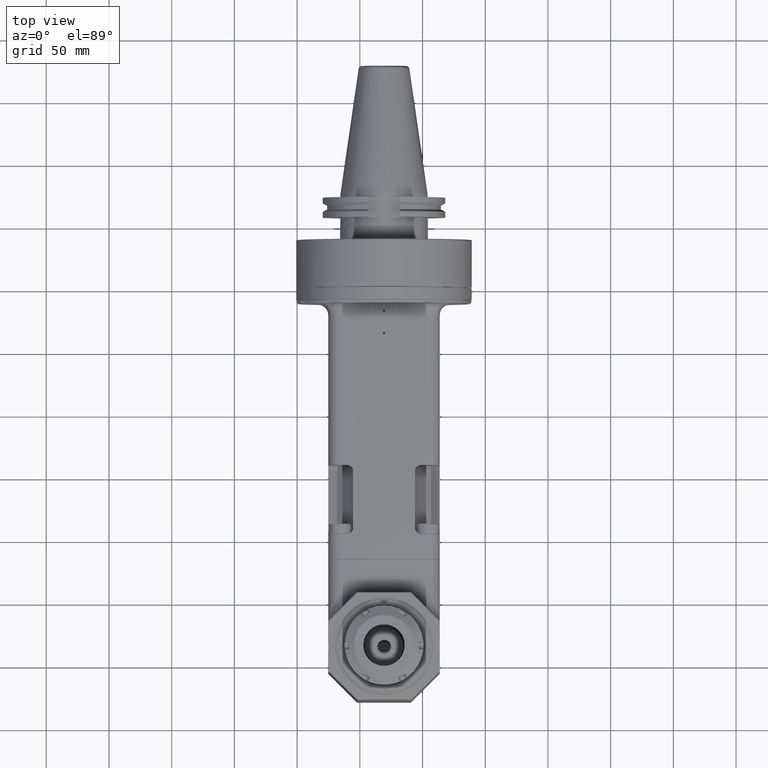
[diagram: clean part render]
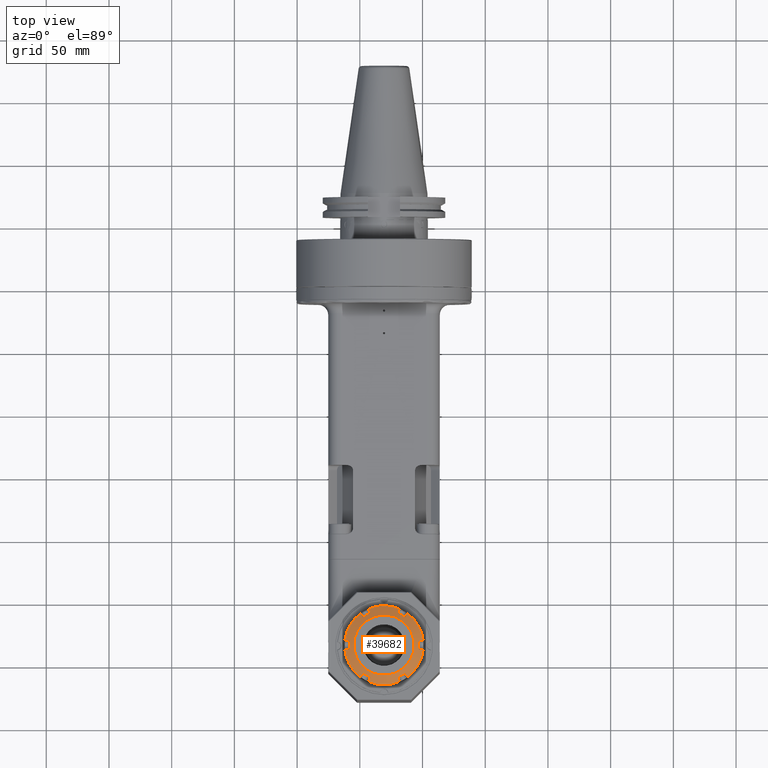
[diagram: same view with one face highlighted and labeled with its STEP entity id]
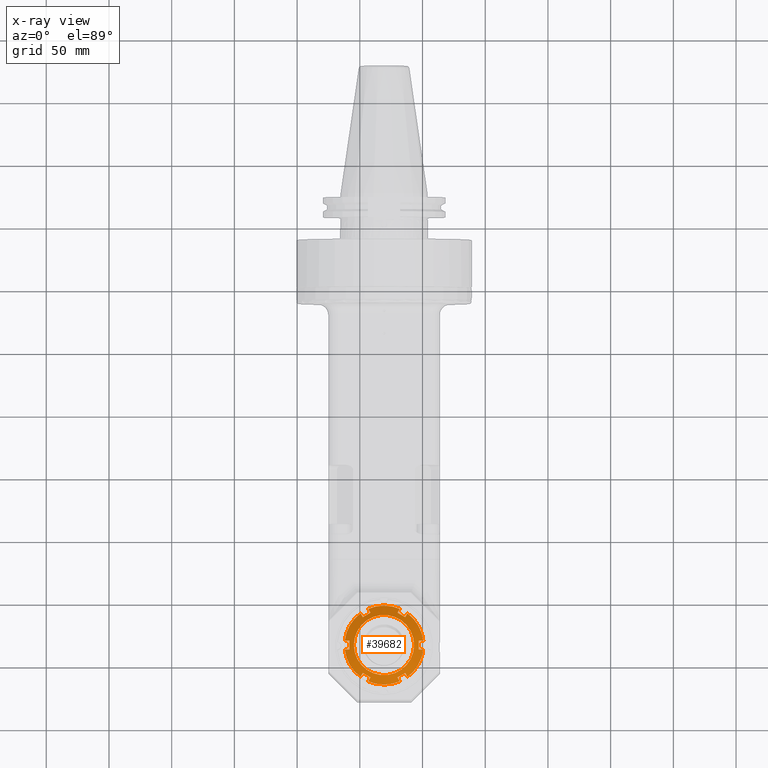
[diagram: x-ray of the same camera — body ghosted, the highlighted face saturated]
A machine part, top view. The second image highlights one B-rep face of the part: STEP entity #39682.
The next image is the same camera in x-ray: the body ghosted, the highlighted face saturated — about 0% of this face is hidden behind the body in this view.
In plain terms, the highlighted conical surface has half-angle 60 deg.
Its self-contained STEP definition (entity closure, byte-faithful):
#1226=B_SPLINE_CURVE_WITH_KNOTS('',3,(#71067,#71068,#71069,#71070,#71071,
#71072),.UNSPECIFIED.,.F.,.F.,(4,2,4),(1.11979015614357E-6,0.176519901403178,
0.3535839406117),.UNSPECIFIED.);
#1227=B_SPLINE_CURVE_WITH_KNOTS('',3,(#71074,#71075,#71076,#71077,#71078,
#71079),.UNSPECIFIED.,.F.,.F.,(4,2,4),(3.77529047413861E-6,0.206209562273198,
0.406370046693071),.UNSPECIFIED.);
#1228=B_SPLINE_CURVE_WITH_KNOTS('',3,(#71087,#71088,#71089,#71090,#71091,
#71092),.UNSPECIFIED.,.F.,.F.,(4,2,4),(9.99999987520117E-7,0.199819054731875,
0.405671878882407),.UNSPECIFIED.);
#1229=B_SPLINE_CURVE_WITH_KNOTS('',3,(#71094,#71095,#71096,#71097,#71098,
#71099,#71100,#71101),.UNSPECIFIED.,.F.,.F.,(4,2,2,4),(2.65994634475977E-6,
0.177012282494541,0.353623444164334,0.707595465118637),.UNSPECIFIED.);
#1230=B_SPLINE_CURVE_WITH_KNOTS('',3,(#71103,#71104,#71105,#71106,#71107,
#71108),.UNSPECIFIED.,.F.,.F.,(4,2,4),(0.,0.206213207235777,0.406373521286783),
 .UNSPECIFIED.);
#1231=B_SPLINE_CURVE_WITH_KNOTS('',3,(#71116,#71117,#71118,#71119,#71120,
#71121),.UNSPECIFIED.,.F.,.F.,(4,2,4),(9.99999987868738E-7,0.199818434846221,
0.405676522198377),.UNSPECIFIED.);
#1232=B_SPLINE_CURVE_WITH_KNOTS('',3,(#71123,#71124,#71125,#71126,#71127,
#71128,#71129,#71130),.UNSPECIFIED.,.F.,.F.,(4,2,2,4),(4.8034315771663E-6,
0.35417573000613,0.530882425887544,0.707992922418419),.UNSPECIFIED.);
#1233=B_SPLINE_CURVE_WITH_KNOTS('',3,(#71132,#71133,#71134,#71135,#71136,
#71137),.UNSPECIFIED.,.F.,.F.,(4,2,4),(1.88411020549214E-6,0.206209750901718,
0.406370691318244),.UNSPECIFIED.);
#1234=B_SPLINE_CURVE_WITH_KNOTS('',3,(#71145,#71146,#71147,#71148,#71149,
#71150),.UNSPECIFIED.,.F.,.F.,(4,2,4),(9.99999986804369E-7,0.199818607037728,
0.405669393272314),.UNSPECIFIED.);
#1235=B_SPLINE_CURVE_WITH_KNOTS('',3,(#71152,#71153,#71154,#71155,#71156,
#71157),.UNSPECIFIED.,.F.,.F.,(4,2,4),(2.44498640368774E-6,0.177058060117183,
0.353566850396505),.UNSPECIFIED.);
#1236=B_SPLINE_CURVE_WITH_KNOTS('',3,(#71159,#71160,#71161,#71162,#71163,
#71164),.UNSPECIFIED.,.F.,.F.,(4,2,4),(1.11979017745984E-6,0.17651990140332,
0.35358394061231),.UNSPECIFIED.);
#1237=B_SPLINE_CURVE_WITH_KNOTS('',3,(#71166,#71167,#71168,#71169,#71170,
#71171),.UNSPECIFIED.,.F.,.F.,(4,2,4),(3.77529047639338E-6,0.206209053955628,
0.406370046697065),.UNSPECIFIED.);
#1238=B_SPLINE_CURVE_WITH_KNOTS('',3,(#71179,#71180,#71181,#71182,#71183,
#71184),.UNSPECIFIED.,.F.,.F.,(4,2,4),(9.99999987442481E-7,0.199819054752461,
0.405671878919684),.UNSPECIFIED.);
#1239=B_SPLINE_CURVE_WITH_KNOTS('',3,(#71186,#71187,#71188,#71189,#71190,
#71191,#71192,#71193),.UNSPECIFIED.,.F.,.F.,(4,2,2,4),(2.65994633911778E-6,
0.17701229104273,0.353623461248479,0.707595526966551),.UNSPECIFIED.);
#1240=B_SPLINE_CURVE_WITH_KNOTS('',3,(#71195,#71196,#71197,#71198,#71199,
#71200),.UNSPECIFIED.,.F.,.F.,(4,2,4),(0.,0.205840510463406,0.406342510941892),
 .UNSPECIFIED.);
#1241=B_SPLINE_CURVE_WITH_KNOTS('',3,(#71208,#71209,#71210,#71211,#71212,
#71213),.UNSPECIFIED.,.F.,.F.,(4,2,4),(9.99999986085214E-7,0.199818942267007,
0.405676522135948),.UNSPECIFIED.);
#1242=B_SPLINE_CURVE_WITH_KNOTS('',3,(#71215,#71216,#71217,#71218,#71219,
#71220,#71221,#71222),.UNSPECIFIED.,.F.,.F.,(4,2,2,4),(4.80343158722682E-6,
0.354175730005551,0.530882425887124,0.707992922415931),.UNSPECIFIED.);
#1243=B_SPLINE_CURVE_WITH_KNOTS('',3,(#71224,#71225,#71226,#71227,#71228,
#71229),.UNSPECIFIED.,.F.,.F.,(4,2,4),(1.88411021176647E-6,0.206209750915278,
0.406370691377473),.UNSPECIFIED.);
#1244=B_SPLINE_CURVE_WITH_KNOTS('',3,(#71237,#71238,#71239,#71240,#71241,
#71242),.UNSPECIFIED.,.F.,.F.,(4,2,4),(9.99999986033955E-7,0.199819114391825,
0.40566939312791),.UNSPECIFIED.);
#1245=B_SPLINE_CURVE_WITH_KNOTS('',3,(#71243,#71244,#71245,#71246,#71247,
#71248),.UNSPECIFIED.,.F.,.F.,(4,2,4),(2.4449864141373E-6,0.177058060116607,
0.353566850395176),.UNSPECIFIED.);
#1702=CONICAL_SURFACE('',#42824,27.75,1.0471975511966);
#3555=LINE('',#71081,#6587);
#3556=LINE('',#71085,#6588);
#3557=LINE('',#71110,#6589);
#3558=LINE('',#71114,#6590);
#3559=LINE('',#71139,#6591);
#3560=LINE('',#71143,#6592);
#3561=LINE('',#71173,#6593);
#3562=LINE('',#71177,#6594);
#3563=LINE('',#71202,#6595);
#3564=LINE('',#71206,#6596);
#3565=LINE('',#71231,#6597);
#3566=LINE('',#71235,#6598);
#3567=LINE('',#71249,#6599);
#6587=VECTOR('',#50258,10.);
#6588=VECTOR('',#50261,10.);
#6589=VECTOR('',#50262,10.);
#6590=VECTOR('',#50265,10.);
#6591=VECTOR('',#50266,10.);
#6592=VECTOR('',#50269,10.);
#6593=VECTOR('',#50270,10.);
#6594=VECTOR('',#50273,10.);
#6595=VECTOR('',#50274,10.);
#6596=VECTOR('',#50277,10.);
#6597=VECTOR('',#50278,10.);
#6598=VECTOR('',#50281,10.);
#6599=VECTOR('',#50282,27.75);
#10066=FACE_OUTER_BOUND('',#12607,.T.);
#12607=EDGE_LOOP('',(#31102,#31103,#31104,#31105,#31106,#31107,#31108,#31109,
#31110,#31111,#31112,#31113,#31114,#31115,#31116,#31117,#31118,#31119,#31120,
#31121,#31122,#31123,#31124,#31125,#31126,#31127,#31128,#31129,#31130,#31131,
#31132,#31133,#31134,#31135,#31136,#31137,#31138,#31139,#31140,#31141,#31142));
#14724=CIRCLE('',#42823,24.);
#14725=CIRCLE('',#42825,31.5);
#14726=CIRCLE('',#42826,31.5);
#14727=CIRCLE('',#42827,31.5);
#14728=CIRCLE('',#42828,31.5);
#14729=CIRCLE('',#42829,31.5);
#14730=CIRCLE('',#42830,31.5);
#17708=VERTEX_POINT('',#71062);
#17709=VERTEX_POINT('',#71065);
#17710=VERTEX_POINT('',#71066);
#17711=VERTEX_POINT('',#71073);
#17712=VERTEX_POINT('',#71080);
#17713=VERTEX_POINT('',#71082);
#17714=VERTEX_POINT('',#71084);
#17715=VERTEX_POINT('',#71086);
#17716=VERTEX_POINT('',#71093);
#17717=VERTEX_POINT('',#71102);
#17718=VERTEX_POINT('',#71109);
#17719=VERTEX_POINT('',#71111);
#17720=VERTEX_POINT('',#71113);
#17721=VERTEX_POINT('',#71115);
#17722=VERTEX_POINT('',#71122);
#17723=VERTEX_POINT('',#71131);
#17724=VERTEX_POINT('',#71138);
#17725=VERTEX_POINT('',#71140);
#17726=VERTEX_POINT('',#71142);
#17727=VERTEX_POINT('',#71144);
#17728=VERTEX_POINT('',#71151);
#17729=VERTEX_POINT('',#71158);
#17730=VERTEX_POINT('',#71165);
#17731=VERTEX_POINT('',#71172);
#17732=VERTEX_POINT('',#71174);
#17733=VERTEX_POINT('',#71176);
#17734=VERTEX_POINT('',#71178);
#17735=VERTEX_POINT('',#71185);
#17736=VERTEX_POINT('',#71194);
#17737=VERTEX_POINT('',#71201);
#17738=VERTEX_POINT('',#71203);
#17739=VERTEX_POINT('',#71205);
#17740=VERTEX_POINT('',#71207);
#17741=VERTEX_POINT('',#71214);
#17742=VERTEX_POINT('',#71223);
#17743=VERTEX_POINT('',#71230);
#17744=VERTEX_POINT('',#71232);
#17745=VERTEX_POINT('',#71234);
#17746=VERTEX_POINT('',#71236);
#22493=EDGE_CURVE('',#17708,#17708,#14724,.T.);
#22494=EDGE_CURVE('',#17709,#17710,#1226,.T.);
#22495=EDGE_CURVE('',#17710,#17711,#1227,.T.);
#22496=EDGE_CURVE('',#17711,#17712,#3555,.T.);
#22497=EDGE_CURVE('',#17712,#17713,#14725,.T.);
#22498=EDGE_CURVE('',#17713,#17714,#3556,.T.);
#22499=EDGE_CURVE('',#17714,#17715,#1228,.T.);
#22500=EDGE_CURVE('',#17715,#17716,#1229,.T.);
#22501=EDGE_CURVE('',#17716,#17717,#1230,.T.);
#22502=EDGE_CURVE('',#17717,#17718,#3557,.T.);
#22503=EDGE_CURVE('',#17718,#17719,#14726,.T.);
#22504=EDGE_CURVE('',#17719,#17720,#3558,.T.);
#22505=EDGE_CURVE('',#17720,#17721,#1231,.T.);
#22506=EDGE_CURVE('',#17721,#17722,#1232,.T.);
#22507=EDGE_CURVE('',#17722,#17723,#1233,.T.);
#22508=EDGE_CURVE('',#17723,#17724,#3559,.T.);
#22509=EDGE_CURVE('',#17724,#17725,#14727,.T.);
#22510=EDGE_CURVE('',#17725,#17726,#3560,.T.);
#22511=EDGE_CURVE('',#17726,#17727,#1234,.T.);
#22512=EDGE_CURVE('',#17727,#17728,#1235,.T.);
#22513=EDGE_CURVE('',#17728,#17729,#1236,.T.);
#22514=EDGE_CURVE('',#17729,#17730,#1237,.T.);
#22515=EDGE_CURVE('',#17730,#17731,#3561,.T.);
#22516=EDGE_CURVE('',#17732,#17731,#14728,.T.);
#22517=EDGE_CURVE('',#17732,#17733,#3562,.T.);
#22518=EDGE_CURVE('',#17733,#17734,#1238,.T.);
#22519=EDGE_CURVE('',#17734,#17735,#1239,.T.);
#22520=EDGE_CURVE('',#17735,#17736,#1240,.T.);
#22521=EDGE_CURVE('',#17736,#17737,#3563,.T.);
#22522=EDGE_CURVE('',#17738,#17737,#14729,.T.);
#22523=EDGE_CURVE('',#17738,#17739,#3564,.T.);
#22524=EDGE_CURVE('',#17739,#17740,#1241,.T.);
#22525=EDGE_CURVE('',#17740,#17741,#1242,.T.);
#22526=EDGE_CURVE('',#17741,#17742,#1243,.T.);
#22527=EDGE_CURVE('',#17742,#17743,#3565,.T.);
#22528=EDGE_CURVE('',#17744,#17743,#14730,.T.);
#22529=EDGE_CURVE('',#17744,#17745,#3566,.T.);
#22530=EDGE_CURVE('',#17745,#17746,#1244,.T.);
#22531=EDGE_CURVE('',#17746,#17709,#1245,.T.);
#22532=EDGE_CURVE('',#17709,#17708,#3567,.T.);
#31102=ORIENTED_EDGE('',*,*,#22494,.T.);
#31103=ORIENTED_EDGE('',*,*,#22495,.T.);
#31104=ORIENTED_EDGE('',*,*,#22496,.T.);
#31105=ORIENTED_EDGE('',*,*,#22497,.T.);
#31106=ORIENTED_EDGE('',*,*,#22498,.T.);
#31107=ORIENTED_EDGE('',*,*,#22499,.T.);
#31108=ORIENTED_EDGE('',*,*,#22500,.T.);
#31109=ORIENTED_EDGE('',*,*,#22501,.T.);
#31110=ORIENTED_EDGE('',*,*,#22502,.T.);
#31111=ORIENTED_EDGE('',*,*,#22503,.T.);
#31112=ORIENTED_EDGE('',*,*,#22504,.T.);
#31113=ORIENTED_EDGE('',*,*,#22505,.T.);
#31114=ORIENTED_EDGE('',*,*,#22506,.T.);
#31115=ORIENTED_EDGE('',*,*,#22507,.T.);
#31116=ORIENTED_EDGE('',*,*,#22508,.T.);
#31117=ORIENTED_EDGE('',*,*,#22509,.T.);
#31118=ORIENTED_EDGE('',*,*,#22510,.T.);
#31119=ORIENTED_EDGE('',*,*,#22511,.T.);
#31120=ORIENTED_EDGE('',*,*,#22512,.T.);
#31121=ORIENTED_EDGE('',*,*,#22513,.T.);
#31122=ORIENTED_EDGE('',*,*,#22514,.T.);
#31123=ORIENTED_EDGE('',*,*,#22515,.T.);
#31124=ORIENTED_EDGE('',*,*,#22516,.F.);
#31125=ORIENTED_EDGE('',*,*,#22517,.T.);
#31126=ORIENTED_EDGE('',*,*,#22518,.T.);
#31127=ORIENTED_EDGE('',*,*,#22519,.T.);
#31128=ORIENTED_EDGE('',*,*,#22520,.T.);
#31129=ORIENTED_EDGE('',*,*,#22521,.T.);
#31130=ORIENTED_EDGE('',*,*,#22522,.F.);
#31131=ORIENTED_EDGE('',*,*,#22523,.T.);
#31132=ORIENTED_EDGE('',*,*,#22524,.T.);
#31133=ORIENTED_EDGE('',*,*,#22525,.T.);
#31134=ORIENTED_EDGE('',*,*,#22526,.T.);
#31135=ORIENTED_EDGE('',*,*,#22527,.T.);
#31136=ORIENTED_EDGE('',*,*,#22528,.F.);
#31137=ORIENTED_EDGE('',*,*,#22529,.T.);
#31138=ORIENTED_EDGE('',*,*,#22530,.T.);
#31139=ORIENTED_EDGE('',*,*,#22531,.T.);
#31140=ORIENTED_EDGE('',*,*,#22532,.T.);
#31141=ORIENTED_EDGE('',*,*,#22493,.F.);
#31142=ORIENTED_EDGE('',*,*,#22532,.F.);
#39682=ADVANCED_FACE('',(#10066),#1702,.T.);
#42823=AXIS2_PLACEMENT_3D('',#71063,#50254,#50255);
#42824=AXIS2_PLACEMENT_3D('',#71064,#50256,#50257);
#42825=AXIS2_PLACEMENT_3D('',#71083,#50259,#50260);
#42826=AXIS2_PLACEMENT_3D('',#71112,#50263,#50264);
#42827=AXIS2_PLACEMENT_3D('',#71141,#50267,#50268);
#42828=AXIS2_PLACEMENT_3D('',#71175,#50271,#50272);
#42829=AXIS2_PLACEMENT_3D('',#71204,#50275,#50276);
#42830=AXIS2_PLACEMENT_3D('',#71233,#50279,#50280);
#50254=DIRECTION('center_axis',(0.,0.,1.));
#50255=DIRECTION('ref_axis',(-1.,0.,0.));
#50256=DIRECTION('center_axis',(0.,0.,-1.));
#50257=DIRECTION('ref_axis',(1.,0.,0.));
#50258=DIRECTION('',(-0.611712169667684,-0.685157350872875,-0.395433465990575));
#50259=DIRECTION('center_axis',(0.,0.,1.));
#50260=DIRECTION('ref_axis',(-0.993605989113635,-0.112903225806504,0.));
#50261=DIRECTION('',(0.899219756149043,0.187179603435936,0.395433466222601));
#50262=DIRECTION('',(0.287507585847369,-0.872336954549729,-0.395433465714679));
#50263=DIRECTION('center_axis',(0.,0.,1.));
#50264=DIRECTION('ref_axis',(-0.399025932839205,-0.916939640828011,0.));
#50265=DIRECTION('',(0.287507586204518,0.872336954263868,0.395433466085624));
#50266=DIRECTION('',(0.899219756005591,-0.187179604345853,-0.395433466118101));
#50267=DIRECTION('center_axis',(0.,0.,1.));
#50268=DIRECTION('ref_axis',(0.594580056274384,-0.804036415021578,0.));
#50269=DIRECTION('',(-0.61171216961392,0.685157350873131,0.3954334660733));
#50270=DIRECTION('',(0.611712169668043,0.68515735087242,-0.395433465990807));
#50271=DIRECTION('center_axis',(0.,0.,-1.));
#50272=DIRECTION('ref_axis',(0.594580056274384,0.804036415021578,0.));
#50273=DIRECTION('',(-0.899219756149043,-0.187179603435936,0.395433466222601));
#50274=DIRECTION('',(-0.287507586709031,0.872336955239835,-0.395433463565797));
#50275=DIRECTION('center_axis',(0.,0.,-1.));
#50276=DIRECTION('ref_axis',(-0.399025932839205,0.916939640828011,0.));
#50277=DIRECTION('',(-0.287507586204518,-0.872336954263868,0.395433466085624));
#50278=DIRECTION('',(-0.899219756005447,0.18717960434668,-0.395433466118038));
#50279=DIRECTION('center_axis',(0.,0.,-1.));
#50280=DIRECTION('ref_axis',(-0.993605989113635,0.112903225806504,0.));
#50281=DIRECTION('',(0.611712169614279,-0.685157350872677,0.395433466073532));
#50282=DIRECTION('',(0.866025403784439,-1.06057523872491E-16,0.5));
#71062=CARTESIAN_POINT('',(-24.,-287.,120.));
#71063=CARTESIAN_POINT('Origin',(0.,-287.,120.));
#71064=CARTESIAN_POINT('Origin',(0.,-287.,117.8349364905));
#71065=CARTESIAN_POINT('',(-27.7499764138773,-286.999999999681,117.834944760933));
#71066=CARTESIAN_POINT('',(-27.7480228680427,-290.531549301773,117.706849205371));
#71067=CARTESIAN_POINT('Ctrl Pts',(-27.7499620891046,-286.999999998562,
117.834958378366));
#71068=CARTESIAN_POINT('Ctrl Pts',(-27.7498803886436,-287.588395921978,
117.835005548166));
#71069=CARTESIAN_POINT('Ctrl Pts',(-27.7497187331656,-288.17618330145,117.824293605455));
#71070=CARTESIAN_POINT('Ctrl Pts',(-27.7491079587984,-289.353989756533,
117.781500961746));
#71071=CARTESIAN_POINT('Ctrl Pts',(-27.7486564113658,-289.942902482643,
117.749394193503));
#71072=CARTESIAN_POINT('Ctrl Pts',(-27.748023121537,-290.531549280517,117.706848907501));
#71073=CARTESIAN_POINT('',(-31.27322520739,-290.5280429023,115.686268857));
#71074=CARTESIAN_POINT('Ctrl Pts',(-27.748022774899,-290.531550172702,117.706849040997));
#71075=CARTESIAN_POINT('Ctrl Pts',(-28.344498150645,-290.530875944926,117.365278664139));
#71076=CARTESIAN_POINT('Ctrl Pts',(-28.9412756711154,-290.530253872821,
117.02335323077));
#71077=CARTESIAN_POINT('Ctrl Pts',(-30.1161905193415,-290.529101592482,
116.349886755371));
#71078=CARTESIAN_POINT('Ctrl Pts',(-30.695486013842,-290.528568092428,116.017690214604));
#71079=CARTESIAN_POINT('Ctrl Pts',(-31.2732252073851,-290.528042902346,
115.686268856991));
#71080=CARTESIAN_POINT('',(-31.29858865708,-290.5564516129,115.6698729811));
#71081=CARTESIAN_POINT('',(-31.27322520739,-290.5280429023,115.686268857));
#71082=CARTESIAN_POINT('',(-18.72927177264,-312.3271470732,115.6698729811));
#71083=CARTESIAN_POINT('Origin',(0.,-287.,115.6698729811));
#71084=CARTESIAN_POINT('',(-18.69198740322,-312.319386041,115.686268848));
#71085=CARTESIAN_POINT('',(-18.72927177264,-312.3271470732,115.6698729811));
#71086=CARTESIAN_POINT('',(-16.9324125804488,-309.264698394096,117.706861674994));
#71087=CARTESIAN_POINT('Ctrl Pts',(-18.6919874031715,-312.319386041018,
115.686268847986));
#71088=CARTESIAN_POINT('Ctrl Pts',(-18.4035675251728,-311.818778012848,
116.017695958998));
#71089=CARTESIAN_POINT('Ctrl Pts',(-18.1143847733939,-311.316831835839,
116.349889071589));
#71090=CARTESIAN_POINT('Ctrl Pts',(-17.5279200144258,-310.298740390375,
117.023361608749));
#71091=CARTESIAN_POINT('Ctrl Pts',(-17.2300680847118,-309.781601421711,
117.365289284948));
#71092=CARTESIAN_POINT('Ctrl Pts',(-16.9324125798329,-309.264698394288,
117.706861674747));
#71093=CARTESIAN_POINT('',(-10.8155676962644,-312.796213135022,117.706885103097));
#71094=CARTESIAN_POINT('Ctrl Pts',(-16.9324125808278,-309.264698394876,
117.706861674129));
#71095=CARTESIAN_POINT('Ctrl Pts',(-16.423087124211,-309.559515921872,117.749382696167));
#71096=CARTESIAN_POINT('Ctrl Pts',(-15.9134521086992,-309.854321797106,
117.781460401748));
#71097=CARTESIAN_POINT('Ctrl Pts',(-14.8936445872122,-310.443901798011,
117.824226035478));
#71098=CARTESIAN_POINT('Ctrl Pts',(-14.384605374834,-310.738029555057,117.834914752027));
#71099=CARTESIAN_POINT('Ctrl Pts',(-12.8534883679328,-311.622038051658,
117.83490302235));
#71100=CARTESIAN_POINT('Ctrl Pts',(-11.8359608970168,-312.208583191347,
117.791975289135));
#71101=CARTESIAN_POINT('Ctrl Pts',(-10.8155676238622,-312.796213025355,
117.706885213987));
#71102=CARTESIAN_POINT('',(-12.58123782464,-315.847428939,115.686268857));
#71103=CARTESIAN_POINT('Ctrl Pts',(-10.815567730352,-312.796213309188,117.706885039089));
#71104=CARTESIAN_POINT('Ctrl Pts',(-11.1144000685661,-313.312457590547,
117.365302388564));
#71105=CARTESIAN_POINT('Ctrl Pts',(-11.4133383377177,-313.828989669368,
117.023364632478));
#71106=CARTESIAN_POINT('Ctrl Pts',(-12.0018041419212,-314.845937739276,
116.349886166996));
#71107=CARTESIAN_POINT('Ctrl Pts',(-12.2919136551139,-315.347355156708,
116.017689922318));
#71108=CARTESIAN_POINT('Ctrl Pts',(-12.5812378246593,-315.847428938994,
115.686268857007));
#71109=CARTESIAN_POINT('',(-12.56931688444,-315.8835986861,115.6698729811));
#71110=CARTESIAN_POINT('',(-12.58123782464,-315.847428939,115.686268857));
#71111=CARTESIAN_POINT('',(12.56931688444,-315.8835986861,115.6698729811));
#71112=CARTESIAN_POINT('Origin',(0.,-287.,115.6698729811));
#71113=CARTESIAN_POINT('',(12.5812378181,-315.8474289589,115.686268848));
#71114=CARTESIAN_POINT('',(12.56931688444,-315.8835986861,115.6698729811));
#71115=CARTESIAN_POINT('',(10.8155678961155,-312.796213645004,117.706884809456));
#71116=CARTESIAN_POINT('Ctrl Pts',(12.5812378181339,-315.847428958875,115.686268847992));
#71117=CARTESIAN_POINT('Ctrl Pts',(12.2919100906096,-315.347348774646,116.017694122452));
#71118=CARTESIAN_POINT('Ctrl Pts',(12.0018005953053,-314.845931357522,116.349890361586));
#71119=CARTESIAN_POINT('Ctrl Pts',(11.4133346302146,-313.828983114023,117.02336895275));
#71120=CARTESIAN_POINT('Ctrl Pts',(11.1143982079827,-313.312454366221,117.36530452068));
#71121=CARTESIAN_POINT('Ctrl Pts',(10.8155679092994,-312.796213711578,117.706884784891));
#71122=CARTESIAN_POINT('',(16.9324126166397,-309.264698550445,117.706861590508));
#71123=CARTESIAN_POINT('Ctrl Pts',(10.8155678684681,-312.79621360312,117.706884851754));
#71124=CARTESIAN_POINT('Ctrl Pts',(11.8359586477917,-312.208585365229,117.791974633722));
#71125=CARTESIAN_POINT('Ctrl Pts',(12.853487394086,-311.622038138231,117.834903402622));
#71126=CARTESIAN_POINT('Ctrl Pts',(14.3846024771336,-310.73803094825,117.834914820853));
#71127=CARTESIAN_POINT('Ctrl Pts',(14.8936342459494,-310.443907700376,117.824226241985));
#71128=CARTESIAN_POINT('Ctrl Pts',(15.9134396964526,-309.854329119642,117.781461116143));
#71129=CARTESIAN_POINT('Ctrl Pts',(16.4230808856023,-309.559519721739,117.749383129478));
#71130=CARTESIAN_POINT('Ctrl Pts',(16.9324126170325,-309.264698551253,117.706861589612));
#71131=CARTESIAN_POINT('',(18.69198738275,-312.3193860367,115.686268857));
#71132=CARTESIAN_POINT('Ctrl Pts',(16.9324126160013,-309.264698550644,117.706861590253));
#71133=CARTESIAN_POINT('Ctrl Pts',(17.2300701377207,-309.781604976654,117.36528693365));
#71134=CARTESIAN_POINT('Ctrl Pts',(17.5279239207269,-310.29874702278,117.02335719324));
#71135=CARTESIAN_POINT('Ctrl Pts',(18.1143885159108,-311.316838079046,116.34988488963));
#71136=CARTESIAN_POINT('Ctrl Pts',(18.4035712657912,-311.818784283413,116.017691763735));
#71137=CARTESIAN_POINT('Ctrl Pts',(18.6919873827525,-312.319386036696,115.686268856995));
#71138=CARTESIAN_POINT('',(18.72927177264,-312.3271470732,115.6698729811));
#71139=CARTESIAN_POINT('',(18.69198738275,-312.3193860367,115.686268857));
#71140=CARTESIAN_POINT('',(31.29858865708,-290.5564516129,115.6698729811));
#71141=CARTESIAN_POINT('Origin',(0.,-287.,115.6698729811));
#71142=CARTESIAN_POINT('',(31.27322522132,-290.5280429179,115.686268848));
#71143=CARTESIAN_POINT('',(31.29858865708,-290.5564516129,115.6698729811));
#71144=CARTESIAN_POINT('',(27.7480224471497,-290.531549416664,117.706849426738));
#71145=CARTESIAN_POINT('Ctrl Pts',(31.273225221315,-290.52804291793,115.686268847991));
#71146=CARTESIAN_POINT('Ctrl Pts',(30.6954787162142,-290.52856798824,116.01769440806));
#71147=CARTESIAN_POINT('Ctrl Pts',(30.1161832511946,-290.529101472951,116.34989093166));
#71148=CARTESIAN_POINT('Ctrl Pts',(28.9412679066406,-290.530253806123,117.02335768497));
#71149=CARTESIAN_POINT('Ctrl Pts',(28.3444938778797,-290.530875944606,117.36528111146));
#71150=CARTESIAN_POINT('Ctrl Pts',(27.7480223609562,-290.531550219899,117.706849274635));
#71151=CARTESIAN_POINT('',(27.7499772795716,-286.999999998305,117.834944261124));
#71152=CARTESIAN_POINT('Ctrl Pts',(27.7480226823908,-290.531549396954,117.706849150526));
#71153=CARTESIAN_POINT('Ctrl Pts',(27.7486557548159,-289.942899890366,117.749394760547));
#71154=CARTESIAN_POINT('Ctrl Pts',(27.7491072002085,-289.353984585474,117.781501684468));
#71155=CARTESIAN_POINT('Ctrl Pts',(27.7497185470861,-288.176177953704,117.824293812653));
#71156=CARTESIAN_POINT('Ctrl Pts',(27.7498808776565,-287.58839334375,117.835005265849));
#71157=CARTESIAN_POINT('Ctrl Pts',(27.7499638204932,-286.999999997409,117.834957378748));
#71158=CARTESIAN_POINT('',(27.7480228680427,-283.468450698227,117.706849205371));
#71159=CARTESIAN_POINT('Ctrl Pts',(27.7499620891046,-287.000000001438,117.834958378366));
#71160=CARTESIAN_POINT('Ctrl Pts',(27.7498803886436,-286.411604078022,117.835005548166));
#71161=CARTESIAN_POINT('Ctrl Pts',(27.7497187331656,-285.823816698549,117.824293605455));
#71162=CARTESIAN_POINT('Ctrl Pts',(27.7491079587984,-284.646010243467,117.781500961746));
#71163=CARTESIAN_POINT('Ctrl Pts',(27.7486564113658,-284.057097517355,117.749394193503));
#71164=CARTESIAN_POINT('Ctrl Pts',(27.748023121537,-283.468450719483,117.706848907501));
#71165=CARTESIAN_POINT('',(31.27322520739,-283.4719570977,115.686268857));
#71166=CARTESIAN_POINT('Ctrl Pts',(27.748022774899,-283.468449827298,117.706849040997));
#71167=CARTESIAN_POINT('Ctrl Pts',(28.3444981506351,-283.469124055074,117.365278664144));
#71168=CARTESIAN_POINT('Ctrl Pts',(28.9412756711175,-283.469746127179,117.023353230769));
#71169=CARTESIAN_POINT('Ctrl Pts',(30.1161934156389,-283.470898410358,116.3498850952));
#71170=CARTESIAN_POINT('Ctrl Pts',(30.695483137609,-283.471431904957,116.017691864561));
#71171=CARTESIAN_POINT('Ctrl Pts',(31.2732252073851,-283.471957097654,115.686268856991));
#71172=CARTESIAN_POINT('',(31.29858865708,-283.4435483871,115.6698729811));
#71173=CARTESIAN_POINT('',(31.27322520739,-283.4719570977,115.686268857));
#71174=CARTESIAN_POINT('',(18.72927177264,-261.6728529268,115.6698729811));
#71175=CARTESIAN_POINT('Origin',(0.,-287.,115.6698729811));
#71176=CARTESIAN_POINT('',(18.69198740322,-261.680613959,115.686268848));
#71177=CARTESIAN_POINT('',(18.72927177264,-261.6728529268,115.6698729811));
#71178=CARTESIAN_POINT('',(16.9324125804488,-264.735301605904,117.706861674994));
#71179=CARTESIAN_POINT('Ctrl Pts',(18.6919874031715,-261.680613958982,115.686268847986));
#71180=CARTESIAN_POINT('Ctrl Pts',(18.4035675251431,-262.181221987203,116.017695959032));
#71181=CARTESIAN_POINT('Ctrl Pts',(18.1143847733815,-262.683168164182,116.349889071603));
#71182=CARTESIAN_POINT('Ctrl Pts',(17.5279200144449,-263.701259609591,117.023361608727));
#71183=CARTESIAN_POINT('Ctrl Pts',(17.2300680847193,-264.218398578275,117.365289284939));
#71184=CARTESIAN_POINT('Ctrl Pts',(16.9324125798328,-264.735301605712,117.706861674747));
#71185=CARTESIAN_POINT('',(10.8155672034839,-261.203786491289,117.706884992131));
#71186=CARTESIAN_POINT('Ctrl Pts',(16.9324125808279,-264.735301605124,117.706861674129));
#71187=CARTESIAN_POINT('Ctrl Pts',(16.4230870996145,-264.440484063891,117.74938269822));
#71188=CARTESIAN_POINT('Ctrl Pts',(15.9134520594954,-264.145678174435,117.781460404846));
#71189=CARTESIAN_POINT('Ctrl Pts',(14.893644488656,-263.556098145032,117.824226038583));
#71190=CARTESIAN_POINT('Ctrl Pts',(14.3846052515462,-263.261970373723,117.834914754099));
#71191=CARTESIAN_POINT('Ctrl Pts',(12.8534880905787,-262.377961788296,117.834903018197));
#71192=CARTESIAN_POINT('Ctrl Pts',(11.8359604913134,-261.791416574794,117.791975269979));
#71193=CARTESIAN_POINT('Ctrl Pts',(10.8155670880508,-261.203786666078,117.706885169306));
#71194=CARTESIAN_POINT('',(12.58123820049,-258.1525722013,115.6862693738));
#71195=CARTESIAN_POINT('Ctrl Pts',(10.8155672564334,-261.203786214141,117.706884891085));
#71196=CARTESIAN_POINT('Ctrl Pts',(11.1138593591691,-260.688474881975,117.36591958717));
#71197=CARTESIAN_POINT('Ctrl Pts',(11.4123028244243,-260.172798630627,117.024548580264));
#71198=CARTESIAN_POINT('Ctrl Pts',(12.0007274228713,-259.15592439332,116.351119690771));
#71199=CARTESIAN_POINT('Ctrl Pts',(12.2913587942081,-258.653606546661,116.018326930133));
#71200=CARTESIAN_POINT('Ctrl Pts',(12.5812382005332,-258.152572201364,115.686269373742));
#71201=CARTESIAN_POINT('',(12.56931688444,-258.1164013139,115.6698729811));
#71202=CARTESIAN_POINT('',(12.58123820049,-258.1525722013,115.6862693738));
#71203=CARTESIAN_POINT('',(-12.56931688444,-258.1164013139,115.6698729811));
#71204=CARTESIAN_POINT('Origin',(0.,-287.,115.6698729811));
#71205=CARTESIAN_POINT('',(-12.5812378181,-258.1525710411,115.686268848));
#71206=CARTESIAN_POINT('',(-12.56931688444,-258.1164013139,115.6698729811));
#71207=CARTESIAN_POINT('',(-10.8155678961155,-261.203786354996,117.706884809456));
#71208=CARTESIAN_POINT('Ctrl Pts',(-12.5812378181339,-258.152571041125,
115.686268847992));
#71209=CARTESIAN_POINT('Ctrl Pts',(-12.2919086501925,-258.652653715002,
116.017695772452));
#71210=CARTESIAN_POINT('Ctrl Pts',(-12.0018020458999,-259.154066135656,
116.349888701432));
#71211=CARTESIAN_POINT('Ctrl Pts',(-11.413334630225,-260.171016885959,117.023368952738));
#71212=CARTESIAN_POINT('Ctrl Pts',(-11.1143982079874,-260.687545633771,
117.365304520674));
#71213=CARTESIAN_POINT('Ctrl Pts',(-10.8155679092994,-261.203786288422,
117.706884784891));
#71214=CARTESIAN_POINT('',(-16.9324126166396,-264.735301449555,117.706861590508));
#71215=CARTESIAN_POINT('Ctrl Pts',(-10.8155678684681,-261.20378639688,117.706884851754));
#71216=CARTESIAN_POINT('Ctrl Pts',(-11.83595864779,-261.79141463477,117.791974633722));
#71217=CARTESIAN_POINT('Ctrl Pts',(-12.853487394091,-262.377961861774,117.834903402623));
#71218=CARTESIAN_POINT('Ctrl Pts',(-14.3846024771296,-263.261969051753,
117.834914820856));
#71219=CARTESIAN_POINT('Ctrl Pts',(-14.8936342459399,-263.556092299624,
117.824226241988));
#71220=CARTESIAN_POINT('Ctrl Pts',(-15.9134396964495,-264.145670880359,
117.781461116144));
#71221=CARTESIAN_POINT('Ctrl Pts',(-16.4230808855992,-264.440480278259,
117.749383129478));
#71222=CARTESIAN_POINT('Ctrl Pts',(-16.9324126170325,-264.735301448747,
117.706861589612));
#71223=CARTESIAN_POINT('',(-18.69198738275,-261.6806139633,115.686268857));
#71224=CARTESIAN_POINT('Ctrl Pts',(-16.9324126160013,-264.735301449356,
117.706861590253));
#71225=CARTESIAN_POINT('Ctrl Pts',(-17.2300701377403,-264.218395023312,
117.365286933628));
#71226=CARTESIAN_POINT('Ctrl Pts',(-17.5279239207818,-263.701252977124,
117.023357193177));
#71227=CARTESIAN_POINT('Ctrl Pts',(-18.1143885159044,-262.683161920965,
116.349884889638));
#71228=CARTESIAN_POINT('Ctrl Pts',(-18.4035712657671,-262.181215716629,
116.017691763762));
#71229=CARTESIAN_POINT('Ctrl Pts',(-18.6919873827524,-261.680613963304,
115.686268856995));
#71230=CARTESIAN_POINT('',(-18.72927177264,-261.6728529268,115.6698729811));
#71231=CARTESIAN_POINT('',(-18.69198738275,-261.6806139633,115.686268857));
#71232=CARTESIAN_POINT('',(-31.29858865708,-283.4435483871,115.6698729811));
#71233=CARTESIAN_POINT('Origin',(0.,-287.,115.6698729811));
#71234=CARTESIAN_POINT('',(-31.27322522132,-283.4719570821,115.686268848));
#71235=CARTESIAN_POINT('',(-31.29858865708,-283.4435483871,115.6698729811));
#71236=CARTESIAN_POINT('',(-27.7480224471497,-283.468450583336,117.706849426738));
#71237=CARTESIAN_POINT('Ctrl Pts',(-31.273225221315,-283.47195708207,115.686268847991));
#71238=CARTESIAN_POINT('Ctrl Pts',(-30.6954758400742,-283.471432009147,
116.017696057964));
#71239=CARTESIAN_POINT('Ctrl Pts',(-30.1161861475255,-283.470898529889,
116.349889271471));
#71240=CARTESIAN_POINT('Ctrl Pts',(-28.9412679064963,-283.469746193877,
117.023357685053));
#71241=CARTESIAN_POINT('Ctrl Pts',(-28.3444938778287,-283.469124055394,
117.365281111489));
#71242=CARTESIAN_POINT('Ctrl Pts',(-27.7480223609562,-283.468449780101,
117.706849274634));
#71243=CARTESIAN_POINT('Ctrl Pts',(-27.7480226823908,-283.468450603047,
117.706849150526));
#71244=CARTESIAN_POINT('Ctrl Pts',(-27.7486557548159,-284.057100109632,
117.749394760547));
#71245=CARTESIAN_POINT('Ctrl Pts',(-27.7491072002085,-284.646015414525,
117.781501684468));
#71246=CARTESIAN_POINT('Ctrl Pts',(-27.7497185470861,-285.823822046296,
117.824293812653));
#71247=CARTESIAN_POINT('Ctrl Pts',(-27.7498808776565,-286.41160665625,117.835005265849));
#71248=CARTESIAN_POINT('Ctrl Pts',(-27.7499638204932,-287.000000002591,
117.834957378748));
#71249=CARTESIAN_POINT('',(-27.75,-287.,117.8349364905));